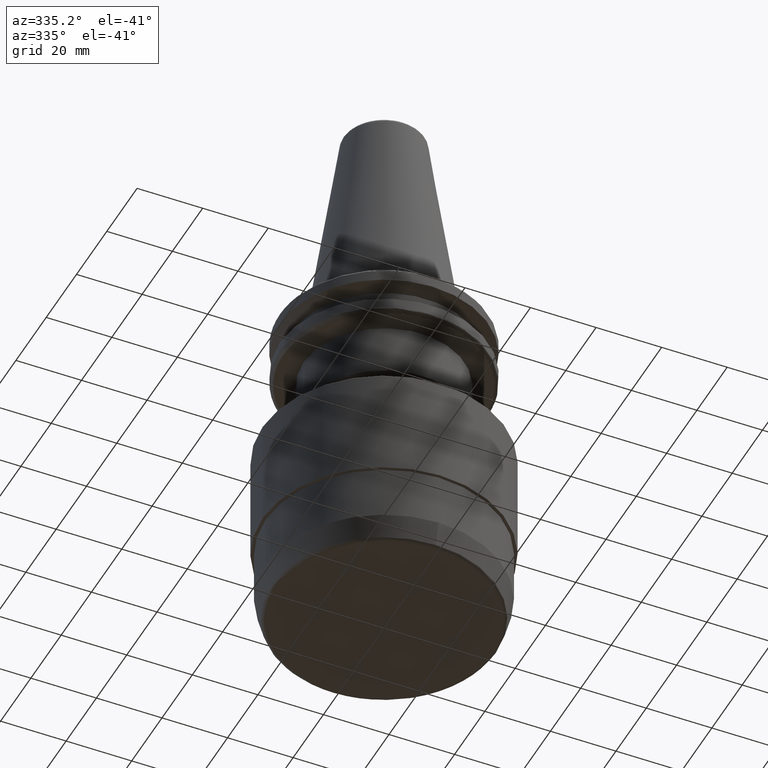
[diagram: clean part render]
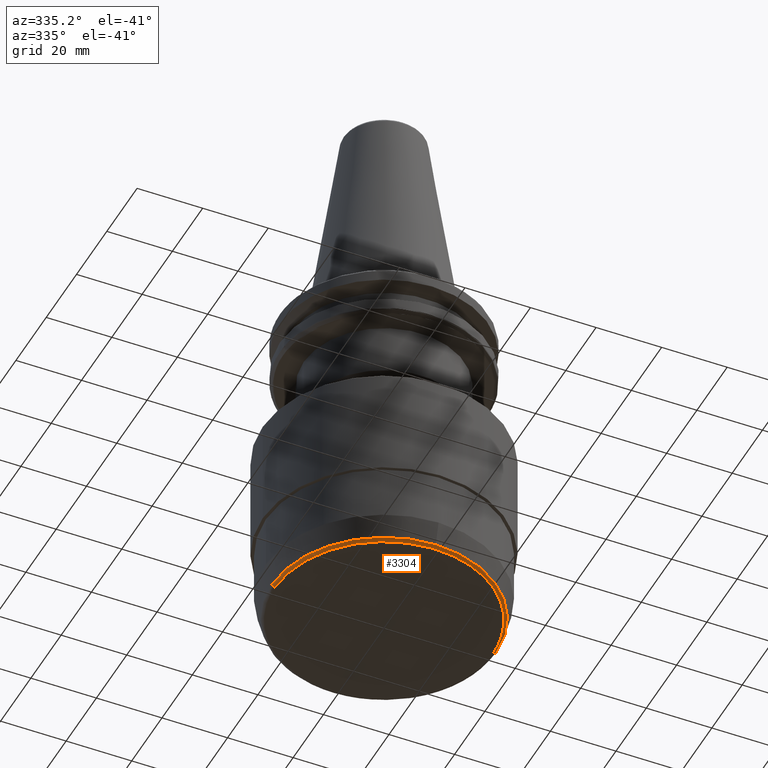
[diagram: same view with one face highlighted and labeled with its STEP entity id]
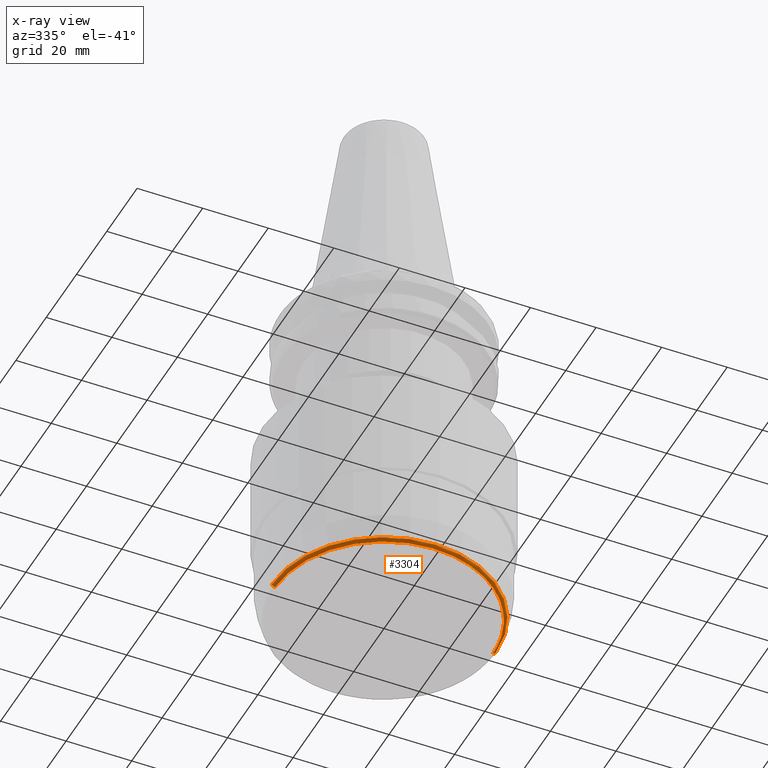
[diagram: x-ray of the same camera — body ghosted, the highlighted face saturated]
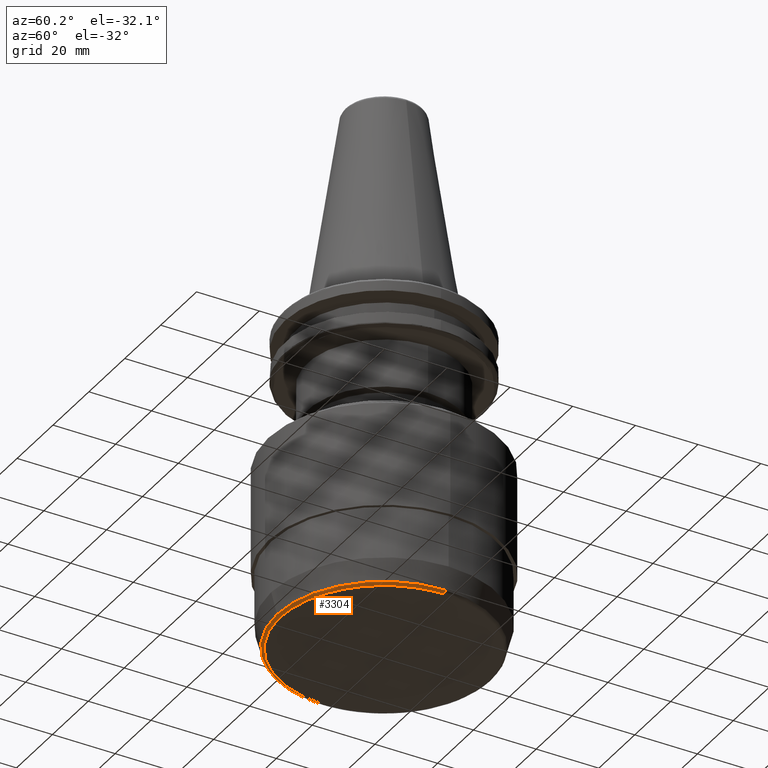
[diagram: same view with one face highlighted and labeled with its STEP entity id]
A machine part, auxiliary view. The second image highlights one B-rep face of the part: STEP entity #3304.
The next image is the same camera in x-ray: the body ghosted, the highlighted face saturated — about 0% of this face is hidden behind the body in this view.
A second angle (auxiliary view) of the same face is appended — the face is thin or edge-on in the first view.
In plain terms, the highlighted face is a freeform B-spline surface patch.
Its self-contained STEP definition (entity closure, byte-faithful):
#58 = EDGE_CURVE ( 'NONE', #447, #1166, #1744, .T. ) ;
#145 = CARTESIAN_POINT ( 'NONE',  ( 33.23267301202103900, 0.0000000000000000000, -105.0000000000000100 ) ) ;
#240 = CARTESIAN_POINT ( 'NONE',  ( -34.07677671372673000, 4.173201552772449800E-015, -104.7134654035336600 ) ) ;
#356 = CIRCLE ( 'NONE', #3303, 34.19859883831010400 ) ;
#447 = VERTEX_POINT ( 'NONE', #1278 ) ;
#532 = CARTESIAN_POINT ( 'NONE',  ( 34.07677671372671600, -68.15355342745346000, -104.7134654035336800 ) ) ;
#692 = ORIENTED_EDGE ( 'NONE', *, *, #2087, .F. ) ;
#701 = EDGE_CURVE ( 'NONE', #732, #2732, #1118, .T. ) ;
#732 = VERTEX_POINT ( 'NONE', #2813 ) ;
#832 = CARTESIAN_POINT ( 'NONE',  ( -33.70335755741498200, 4.127470895320701000E-015, -105.0000000000000000 ) ) ;
#883 = CARTESIAN_POINT ( 'NONE',  ( 33.23267301202104600, -66.46534602404207700, -105.0000000000000300 ) ) ;
#962 = DIRECTION ( 'NONE',  ( -1.000000000000000000, 1.224646799147349500E-016, 0.0000000000000000000 ) ) ;
#1047 = CARTESIAN_POINT ( 'NONE',  ( 0.0000000000000000000, 0.0000000000000000000, -104.2588190451025400 ) ) ;
#1083 = EDGE_LOOP ( 'NONE', ( #1639, #3211, #1768, #1996, #692 ) ) ;
#1116 = CARTESIAN_POINT ( 'NONE',  ( -34.19859883831010400, 4.188120460266086500E-015, -104.2588190451025400 ) ) ;
#1118 = CIRCLE ( 'NONE', #2243, 1.000000000000000900 ) ;
#1124 = EDGE_CURVE ( 'NONE', #1166, #2732, #3197, .T. ) ;
#1128 = CARTESIAN_POINT ( 'NONE',  ( 33.70335755741496800, -67.40671511482996400, -105.0000000000000100 ) ) ;
#1166 = VERTEX_POINT ( 'NONE', #3306 ) ;
#1214 = FACE_OUTER_BOUND ( 'NONE', #1083, .T. ) ;
#1278 = CARTESIAN_POINT ( 'NONE',  ( -34.19859883831010400, 4.188120460266086500E-015, -104.2588190451025400 ) ) ;
#1288 = CARTESIAN_POINT ( 'NONE',  ( 0.0000000000000000000, -34.19859883831010400, -104.2588190451025400 ) ) ;
#1301 = CARTESIAN_POINT ( 'NONE',  ( -33.23267301202103900, 4.069828663128219600E-015, -104.0000000000000100 ) ) ;
#1322 = DIRECTION ( 'NONE',  ( 1.000000000000000000, 0.0000000000000000000, 4.057998947099616600E-016 ) ) ;
#1402 = CARTESIAN_POINT ( 'NONE',  ( -33.23267301202104600, 4.069828663128220400E-015, -105.0000000000000100 ) ) ;
#1440 = CARTESIAN_POINT ( 'NONE',  ( -33.23267301202105300, -66.46534602404207700, -105.0000000000000300 ) ) ;
#1539 = DIRECTION ( 'NONE',  ( 0.0000000000000000000, 0.0000000000000000000, 1.000000000000000000 ) ) ;
#1588 = EDGE_CURVE ( 'NONE', #447, #2643, #356, .T. ) ;
#1639 = ORIENTED_EDGE ( 'NONE', *, *, #1588, .F. ) ;
#1662 = CARTESIAN_POINT ( 'NONE',  ( 33.23267301202103100, -66.46534602404209100, -104.9999999999999900 ) ) ;
#1744 = CIRCLE ( 'NONE', #2635, 1.000000000000000900 ) ;
#1768 = ORIENTED_EDGE ( 'NONE', *, *, #1124, .T. ) ;
#1898 = CARTESIAN_POINT ( 'NONE',  ( 34.19859883831010400, -8.376240920532173100E-015, -104.2588190451025400 ) ) ;
#1996 = ORIENTED_EDGE ( 'NONE', *, *, #701, .F. ) ;
#2087 = EDGE_CURVE ( 'NONE', #2643, #732, #3132, .T. ) ;
#2148 = CARTESIAN_POINT ( 'NONE',  ( -34.19859883831010400, -68.39719767662020900, -104.2588190451025300 ) ) ;
#2165 = CARTESIAN_POINT ( 'NONE',  ( -34.07677671372673000, -68.15355342745344600, -104.7134654035336800 ) ) ;
#2243 = AXIS2_PLACEMENT_3D ( 'NONE', #2930, #2923, #2916 ) ;
#2382 =( BOUNDED_SURFACE ( )  B_SPLINE_SURFACE ( 3, 3, ( 
 ( #1116, #2148, #3512, #1898 ),
 ( #240, #2165, #532, #2430 ),
 ( #832, #2710, #1128, #2981 ),
 ( #1402, #3240, #1662, #3530 ) ),
 .UNSPECIFIED., .F., .F., .T. ) 
 B_SPLINE_SURFACE_WITH_KNOTS ( ( 4, 4 ),
 ( 4, 4 ),
 ( 0.0000000000000000000, 1.000000000000000000 ),
 ( 0.0000000000000000000, 1.000000000000000000 ),
 .UNSPECIFIED. ) 
 GEOMETRIC_REPRESENTATION_ITEM ( )  RATIONAL_B_SPLINE_SURFACE ( (
 ( 1.000000000000000000, 0.3333333333333334300, 0.3333333333333334300, 1.000000000000000000),
 ( 0.8622355601941595900, 0.2874118533980532500, 0.2874118533980532500, 0.8622355601941595900),
 ( 0.8622355601941595900, 0.2874118533980532500, 0.2874118533980532500, 0.8622355601941595900),
 ( 1.000000000000000000, 0.3333333333333334300, 0.3333333333333334300, 1.000000000000000000) ) ) 
 REPRESENTATION_ITEM ( '' )  SURFACE ( )  );
#2430 = CARTESIAN_POINT ( 'NONE',  ( 34.07677671372673000, -8.346403105544899700E-015, -104.7134654035336600 ) ) ;
#2506 = AXIS2_PLACEMENT_3D ( 'NONE', #3105, #1539, #3367 ) ;
#2635 = AXIS2_PLACEMENT_3D ( 'NONE', #1301, #3536, #962 ) ;
#2643 = VERTEX_POINT ( 'NONE', #1288 ) ;
#2710 = CARTESIAN_POINT ( 'NONE',  ( -33.70335755741499600, -67.40671511482995000, -105.0000000000000100 ) ) ;
#2732 = VERTEX_POINT ( 'NONE', #145 ) ;
#2760 = CARTESIAN_POINT ( 'NONE',  ( 33.23267301202103900, 0.0000000000000000000, -105.0000000000000100 ) ) ;
#2813 = CARTESIAN_POINT ( 'NONE',  ( 34.19859883831010400, 0.0000000000000000000, -104.2588190451025400 ) ) ;
#2898 = DIRECTION ( 'NONE',  ( 0.0000000000000000000, 0.0000000000000000000, 1.000000000000000000 ) ) ;
#2916 = DIRECTION ( 'NONE',  ( 1.000000000000000000, 0.0000000000000000000, 0.0000000000000000000 ) ) ;
#2923 = DIRECTION ( 'NONE',  ( 0.0000000000000000000, 1.000000000000000000, 0.0000000000000000000 ) ) ;
#2930 = CARTESIAN_POINT ( 'NONE',  ( 33.23267301202103900, 0.0000000000000000000, -104.0000000000000100 ) ) ;
#2981 = CARTESIAN_POINT ( 'NONE',  ( 33.70335755741498200, -8.254941790641402000E-015, -105.0000000000000000 ) ) ;
#3105 = CARTESIAN_POINT ( 'NONE',  ( 0.0000000000000000000, 0.0000000000000000000, -104.2588190451025400 ) ) ;
#3132 = CIRCLE ( 'NONE', #2506, 34.19859883831010400 ) ;
#3197 =( BOUNDED_CURVE ( )  B_SPLINE_CURVE ( 3, ( #3277, #1440, #883, #2760 ),
 .UNSPECIFIED., .F., .F. ) 
 B_SPLINE_CURVE_WITH_KNOTS ( ( 4, 4 ),
 ( 0.0000000000000000000, 1.000000000000000000 ),
 .UNSPECIFIED. ) 
 CURVE ( )  GEOMETRIC_REPRESENTATION_ITEM ( )  RATIONAL_B_SPLINE_CURVE ( ( 1.000000000000000000, 0.3333333333333333700, 0.3333333333333333700, 1.000000000000000000 ) ) 
 REPRESENTATION_ITEM ( '' )  );
#3211 = ORIENTED_EDGE ( 'NONE', *, *, #58, .T. ) ;
#3240 = CARTESIAN_POINT ( 'NONE',  ( -33.23267301202105300, -66.46534602404207700, -104.9999999999999900 ) ) ;
#3277 = CARTESIAN_POINT ( 'NONE',  ( -33.23267301202103900, 5.217454759439823100E-015, -105.0000000000000100 ) ) ;
#3303 = AXIS2_PLACEMENT_3D ( 'NONE', #1047, #2898, #1322 ) ;
#3304 = ADVANCED_FACE ( 'NONE', ( #1214 ), #2382, .T. ) ;
#3306 = CARTESIAN_POINT ( 'NONE',  ( -33.23267301202103900, 5.217454759439823100E-015, -105.0000000000000100 ) ) ;
#3367 = DIRECTION ( 'NONE',  ( 1.000000000000000000, 0.0000000000000000000, 4.057998947099616600E-016 ) ) ;
#3512 = CARTESIAN_POINT ( 'NONE',  ( 34.19859883831009000, -68.39719767662020900, -104.2588190451025300 ) ) ;
#3530 = CARTESIAN_POINT ( 'NONE',  ( 33.23267301202104600, -8.139657326256440800E-015, -105.0000000000000100 ) ) ;
#3536 = DIRECTION ( 'NONE',  ( -1.224646799147353200E-016, -1.000000000000000000, 0.0000000000000000000 ) ) ;